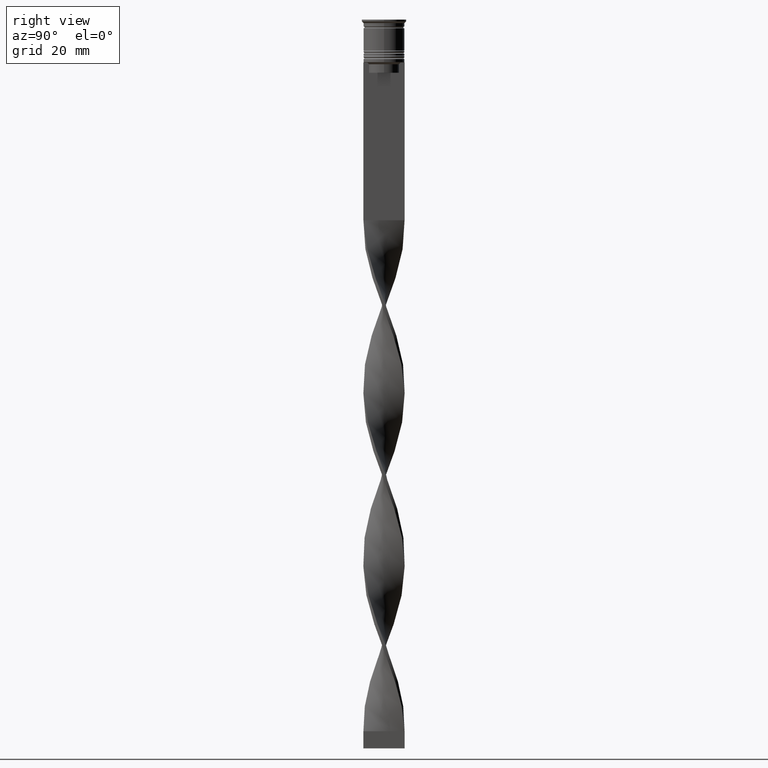
[diagram: clean part render]
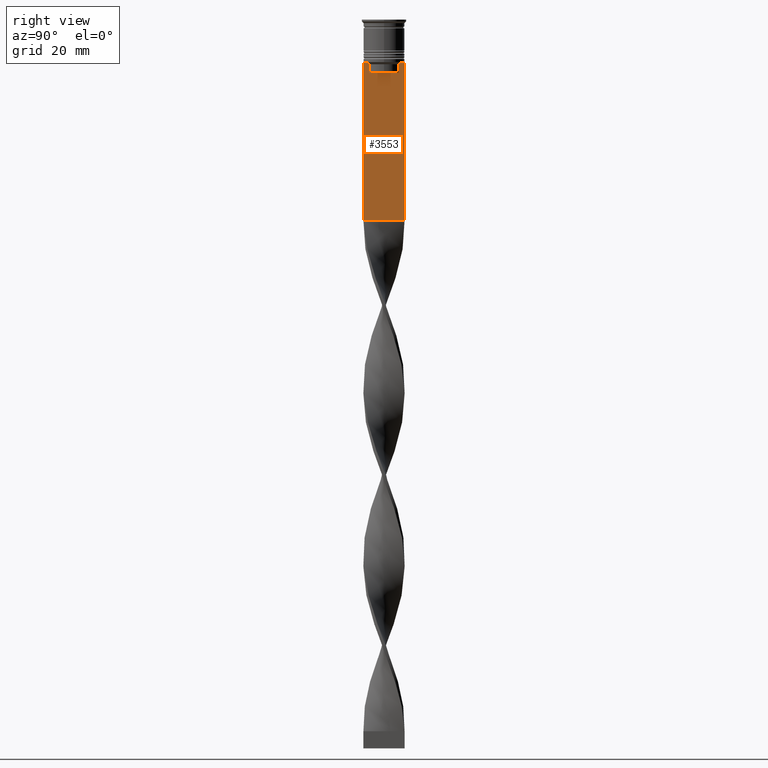
[diagram: same view with one face highlighted and labeled with its STEP entity id]
A machine part, right view. The second image highlights one B-rep face of the part: STEP entity #3553.
In plain terms, the highlighted planar face has unit normal (-1, 0, 0).
Its self-contained STEP definition (entity closure, byte-faithful):
#30 = LINE ( 'NONE', #3073, #2375 ) ;
#129 = CARTESIAN_POINT ( 'NONE',  ( 0.5000000000000002220, 4.371498598878878816, -13.00000000000000178 ) ) ;
#130 = LINE ( 'NONE', #752, #1939 ) ;
#167 = CARTESIAN_POINT ( 'NONE',  ( 0.5000000000000002220, -4.706831372970962768, -12.66671687695981774 ) ) ;
#168 = ORIENTED_EDGE ( 'NONE', *, *, #937, .T. ) ;
#179 = VECTOR ( 'NONE', #3671, 1000.000000000000000 ) ;
#187 = CARTESIAN_POINT ( 'NONE',  ( 0.5000000000000002220, -4.371498598878878816, -13.00000000000000178 ) ) ;
#218 = CARTESIAN_POINT ( 'NONE',  ( 0.5000000000000002220, 4.399999999999999467, -15.50000000000000000 ) ) ;
#345 = ORIENTED_EDGE ( 'NONE', *, *, #1649, .T. ) ;
#356 = ORIENTED_EDGE ( 'NONE', *, *, #2737, .F. ) ;
#372 = LINE ( 'NONE', #2478, #179 ) ;
#454 = CARTESIAN_POINT ( 'NONE',  ( 0.5000000000000002220, -4.371498598878878816, -13.00000000000000178 ) ) ;
#467 = CARTESIAN_POINT ( 'NONE',  ( 0.5000000000000002220, 5.878775382679627626, -12.50000000000000000 ) ) ;
#484 = CARTESIAN_POINT ( 'NONE',  ( 0.5000000000000002220, 4.371498598878878816, -13.00000000000000178 ) ) ;
#520 = EDGE_CURVE ( 'NONE', #3347, #2023, #3844, .T. ) ;
#580 = FACE_OUTER_BOUND ( 'NONE', #3159, .T. ) ;
#639 = DIRECTION ( 'NONE',  ( 0.000000000000000000, -1.000000000000000000, 0.000000000000000000 ) ) ;
#728 = CARTESIAN_POINT ( 'NONE',  ( 0.5000000000000002220, 6.000000000000000888, -58.50000000000000000 ) ) ;
#752 = CARTESIAN_POINT ( 'NONE',  ( 0.5000000000000002220, -6.000000000000000000, -12.50000000000000000 ) ) ;
#845 = ORIENTED_EDGE ( 'NONE', *, *, #1876, .T. ) ;
#847 = CARTESIAN_POINT ( 'NONE',  ( 0.5000000000000002220, 6.000000000000000888, -0.4584054212077061097 ) ) ;
#852 = VERTEX_POINT ( 'NONE', #1231 ) ;
#892 = LINE ( 'NONE', #847, #1879 ) ;
#928 = EDGE_CURVE ( 'NONE', #3068, #944, #3143, .T. ) ;
#937 = EDGE_CURVE ( 'NONE', #852, #2535, #1152, .T. ) ;
#944 = VERTEX_POINT ( 'NONE', #2286 ) ;
#954 = PLANE ( 'NONE',  #1722 ) ;
#985 = CARTESIAN_POINT ( 'NONE',  ( 0.5000000000000002220, 4.371498598878878816, -15.50000000000000000 ) ) ;
#1152 = B_SPLINE_CURVE_WITH_KNOTS ( 'NONE', 3,
 ( #3487, #1996, #3197, #484 ),
 .UNSPECIFIED., .F., .F.,
 ( 4, 4 ),
 ( 0.008336552452178421987, 0.009045730124312839626 ),
 .UNSPECIFIED. ) ;
#1160 = CARTESIAN_POINT ( 'NONE',  ( 0.5000000000000002220, -6.000000000000000000, -58.50000000000000000 ) ) ;
#1177 = VECTOR ( 'NONE', #3053, 1000.000000000000000 ) ;
#1186 = VECTOR ( 'NONE', #1189, 1000.000000000000000 ) ;
#1189 = DIRECTION ( 'NONE',  ( -0.000000000000000000, -0.000000000000000000, 1.000000000000000000 ) ) ;
#1231 = CARTESIAN_POINT ( 'NONE',  ( 0.5000000000000002220, 4.874423042781576676, -12.50000000000000000 ) ) ;
#1282 = CARTESIAN_POINT ( 'NONE',  ( 0.5000000000000002220, -6.000000000000000000, -0.4584054212077061097 ) ) ;
#1358 = CARTESIAN_POINT ( 'NONE',  ( 0.5000000000000002220, -4.874423042781576676, -12.50000000000000000 ) ) ;
#1374 = CARTESIAN_POINT ( 'NONE',  ( 0.5000000000000002220, -5.878775382679627626, -12.50000000000000000 ) ) ;
#1392 = VERTEX_POINT ( 'NONE', #1642 ) ;
#1408 = VERTEX_POINT ( 'NONE', #467 ) ;
#1482 = B_SPLINE_CURVE_WITH_KNOTS ( 'NONE', 3,
 ( #454, #2561, #167, #1656 ),
 .UNSPECIFIED., .F., .F.,
 ( 4, 4 ),
 ( 0.02089901220910808308, 0.02161421017310286019 ),
 .UNSPECIFIED. ) ;
#1485 = LINE ( 'NONE', #2426, #1186 ) ;
#1528 = ORIENTED_EDGE ( 'NONE', *, *, #2926, .T. ) ;
#1539 = DIRECTION ( 'NONE',  ( 0.000000000000000000, 1.000000000000000000, 0.000000000000000000 ) ) ;
#1580 = LINE ( 'NONE', #2444, #1177 ) ;
#1590 = EDGE_CURVE ( 'NONE', #2547, #3068, #1841, .T. ) ;
#1642 = CARTESIAN_POINT ( 'NONE',  ( 0.5000000000000002220, -5.999999999999999112, -58.50000000000000000 ) ) ;
#1649 = EDGE_CURVE ( 'NONE', #2023, #2410, #1485, .T. ) ;
#1656 = CARTESIAN_POINT ( 'NONE',  ( 0.5000000000000002220, -4.874423042781576676, -12.50000000000000000 ) ) ;
#1688 = VECTOR ( 'NONE', #639, 1000.000000000000000 ) ;
#1689 = ORIENTED_EDGE ( 'NONE', *, *, #520, .T. ) ;
#1722 = AXIS2_PLACEMENT_3D ( 'NONE', #1282, #2804, #3658 ) ;
#1841 = LINE ( 'NONE', #3567, #2127 ) ;
#1863 = EDGE_CURVE ( 'NONE', #1408, #852, #130, .T. ) ;
#1875 = VECTOR ( 'NONE', #2351, 1000.000000000000000 ) ;
#1876 = EDGE_CURVE ( 'NONE', #2410, #2547, #1482, .T. ) ;
#1879 = VECTOR ( 'NONE', #3535, 1000.000000000000000 ) ;
#1939 = VECTOR ( 'NONE', #3736, 1000.000000000000000 ) ;
#1996 = CARTESIAN_POINT ( 'NONE',  ( 0.5000000000000002220, 4.706831415367288329, -12.66671683478479160 ) ) ;
#2023 = VERTEX_POINT ( 'NONE', #2398 ) ;
#2073 = DIRECTION ( 'NONE',  ( 0.000000000000000000, -1.000000000000000000, 0.000000000000000000 ) ) ;
#2127 = VECTOR ( 'NONE', #2073, 1000.000000000000000 ) ;
#2141 = DIRECTION ( 'NONE',  ( 0.000000000000000000, 0.000000000000000000, -1.000000000000000000 ) ) ;
#2146 = EDGE_CURVE ( 'NONE', #944, #1392, #1580, .T. ) ;
#2178 = CARTESIAN_POINT ( 'NONE',  ( 0.5000000000000002220, 6.000000000000000888, -12.50000000000000000 ) ) ;
#2190 = CARTESIAN_POINT ( 'NONE',  ( 0.5000000000000002220, -6.000000000000000000, -12.50000000000000000 ) ) ;
#2286 = CARTESIAN_POINT ( 'NONE',  ( 0.5000000000000002220, -6.000000000000000000, -12.50000000000000000 ) ) ;
#2320 = VERTEX_POINT ( 'NONE', #2178 ) ;
#2344 = VECTOR ( 'NONE', #1539, 1000.000000000000000 ) ;
#2349 = ORIENTED_EDGE ( 'NONE', *, *, #1590, .T. ) ;
#2351 = DIRECTION ( 'NONE',  ( 0.000000000000000000, -1.000000000000000000, 0.000000000000000000 ) ) ;
#2357 = EDGE_CURVE ( 'NONE', #2535, #3347, #30, .T. ) ;
#2375 = VECTOR ( 'NONE', #2141, 1000.000000000000000 ) ;
#2398 = CARTESIAN_POINT ( 'NONE',  ( 0.5000000000000002220, -4.371498598878878816, -15.50000000000000000 ) ) ;
#2410 = VERTEX_POINT ( 'NONE', #187 ) ;
#2426 = CARTESIAN_POINT ( 'NONE',  ( 0.5000000000000002220, -4.371498598878878816, 0.000000000000000000 ) ) ;
#2444 = CARTESIAN_POINT ( 'NONE',  ( 0.5000000000000002220, -6.000000000000000000, -0.4584054212077061097 ) ) ;
#2478 = CARTESIAN_POINT ( 'NONE',  ( 0.5000000000000002220, -6.000000000000000000, -12.50000000000000000 ) ) ;
#2535 = VERTEX_POINT ( 'NONE', #129 ) ;
#2547 = VERTEX_POINT ( 'NONE', #1358 ) ;
#2561 = CARTESIAN_POINT ( 'NONE',  ( 0.5000000000000002220, -4.539195586926423331, -12.83338928448044314 ) ) ;
#2737 = EDGE_CURVE ( 'NONE', #2320, #3175, #892, .T. ) ;
#2790 = ORIENTED_EDGE ( 'NONE', *, *, #1863, .T. ) ;
#2798 = ORIENTED_EDGE ( 'NONE', *, *, #2357, .T. ) ;
#2804 = DIRECTION ( 'NONE',  ( -1.000000000000000000, 0.000000000000000000, 0.000000000000000000 ) ) ;
#2926 = EDGE_CURVE ( 'NONE', #2320, #1408, #372, .T. ) ;
#3053 = DIRECTION ( 'NONE',  ( 0.000000000000000000, 0.000000000000000000, -1.000000000000000000 ) ) ;
#3068 = VERTEX_POINT ( 'NONE', #1374 ) ;
#3073 = CARTESIAN_POINT ( 'NONE',  ( 0.5000000000000002220, 4.371498598878878816, 0.000000000000000000 ) ) ;
#3143 = LINE ( 'NONE', #2190, #1688 ) ;
#3159 = EDGE_LOOP ( 'NONE', ( #2790, #168, #2798, #1689, #345, #845, #2349, #3673, #3498, #3396, #356, #1528 ) ) ;
#3175 = VERTEX_POINT ( 'NONE', #728 ) ;
#3197 = CARTESIAN_POINT ( 'NONE',  ( 0.5000000000000002220, 4.539195634199896467, -12.83338923751318816 ) ) ;
#3347 = VERTEX_POINT ( 'NONE', #985 ) ;
#3396 = ORIENTED_EDGE ( 'NONE', *, *, #3850, .T. ) ;
#3487 = CARTESIAN_POINT ( 'NONE',  ( 0.5000000000000002220, 4.874423042781576676, -12.50000000000000000 ) ) ;
#3498 = ORIENTED_EDGE ( 'NONE', *, *, #2146, .T. ) ;
#3535 = DIRECTION ( 'NONE',  ( 0.000000000000000000, 0.000000000000000000, -1.000000000000000000 ) ) ;
#3553 = ADVANCED_FACE ( 'NONE', ( #580 ), #954, .F. ) ;
#3567 = CARTESIAN_POINT ( 'NONE',  ( 0.5000000000000002220, -6.000000000000000000, -12.50000000000000000 ) ) ;
#3616 = LINE ( 'NONE', #1160, #2344 ) ;
#3658 = DIRECTION ( 'NONE',  ( 0.000000000000000000, 0.000000000000000000, 1.000000000000000000 ) ) ;
#3671 = DIRECTION ( 'NONE',  ( 0.000000000000000000, -1.000000000000000000, 0.000000000000000000 ) ) ;
#3673 = ORIENTED_EDGE ( 'NONE', *, *, #928, .T. ) ;
#3736 = DIRECTION ( 'NONE',  ( 0.000000000000000000, -1.000000000000000000, 0.000000000000000000 ) ) ;
#3844 = LINE ( 'NONE', #218, #1875 ) ;
#3850 = EDGE_CURVE ( 'NONE', #1392, #3175, #3616, .T. ) ;